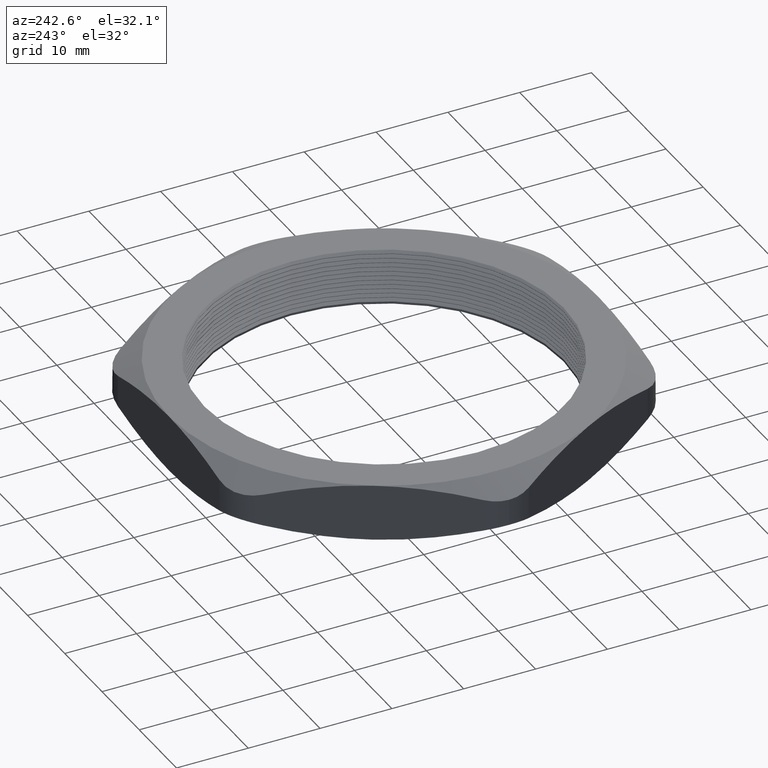
[diagram: clean part render]
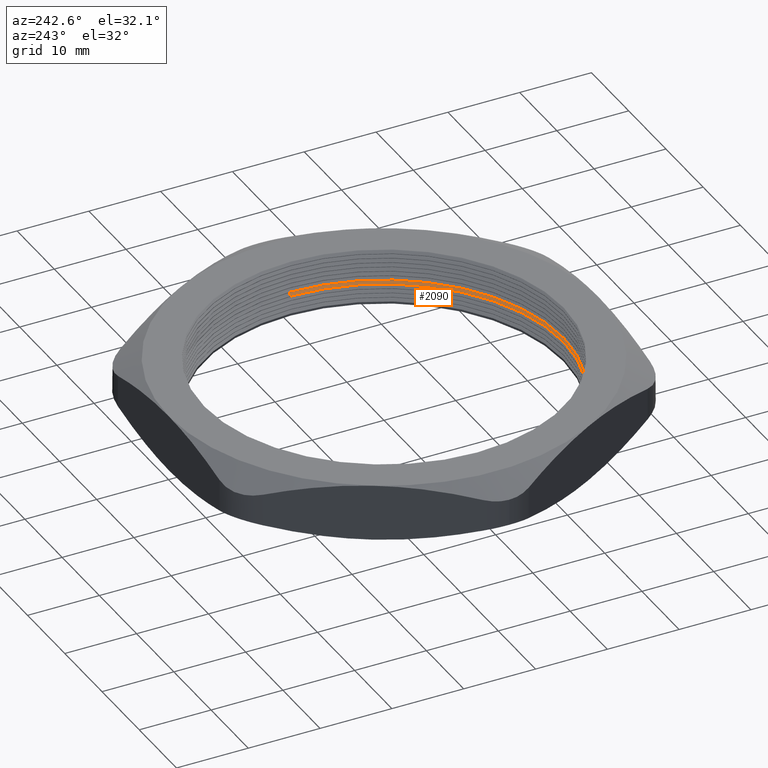
[diagram: same view with one face highlighted and labeled with its STEP entity id]
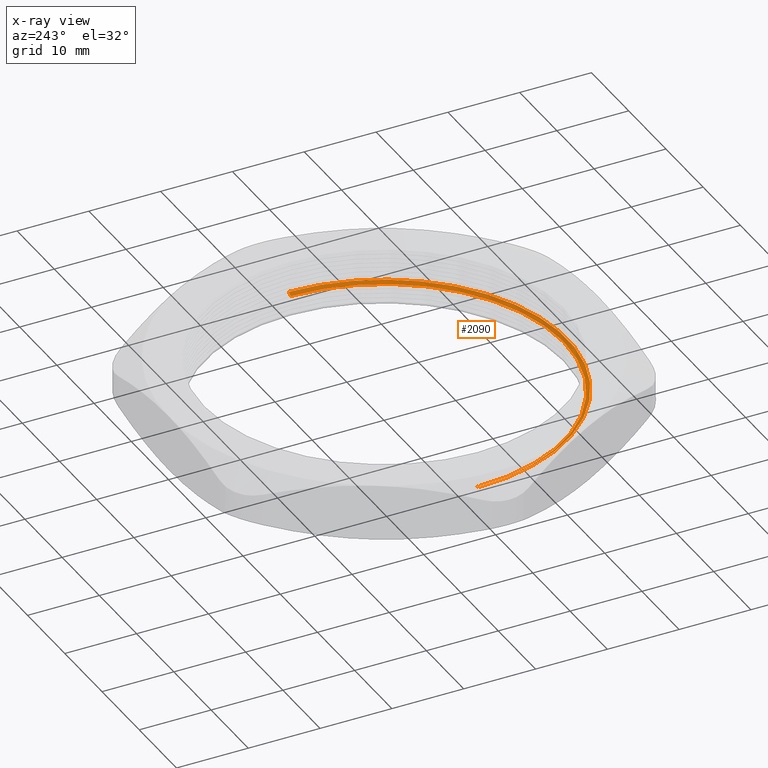
[diagram: x-ray of the same camera — body ghosted, the highlighted face saturated]
A machine part, auxiliary view. The second image highlights one B-rep face of the part: STEP entity #2090.
The next image is the same camera in x-ray: the body ghosted, the highlighted face saturated — about 0% of this face is hidden behind the body in this view.
In plain terms, the highlighted conical surface has half-angle 60 deg.
Its self-contained STEP definition (entity closure, byte-faithful):
#1082 = DIRECTION ( 'NONE',  ( 1.000000000000000000, 0.0000000000000000000, 0.0000000000000000000 ) ) ;
#1083 = AXIS2_PLACEMENT_3D ( 'NONE', #1094, #1092, #1082 ) ;
#1090 = CONICAL_SURFACE ( 'NONE', #1083, 0.9849999999999999900, 1.047197551196592500 ) ;
#1091 = FACE_OUTER_BOUND ( 'NONE', #2389, .T. ) ;
#1092 = DIRECTION ( 'NONE',  ( 0.0000000000000000000, 0.0000000000000000000, 1.000000000000000000 ) ) ;
#1094 = CARTESIAN_POINT ( 'NONE',  ( 0.0000000000000000000, 0.0000000000000000000, 0.1119059892324149900 ) ) ;
#1135 = DIRECTION ( 'NONE',  ( -0.8660254037844360400, 1.060575238724903700E-016, 0.5000000000000045500 ) ) ;
#1136 = VECTOR ( 'NONE', #1135, 39.37007874015748100 ) ;
#1137 = CARTESIAN_POINT ( 'NONE',  ( -0.9849999999999999900, 1.206277097160143100E-016, 0.1119059892324149900 ) ) ;
#1138 = LINE ( 'NONE', #1137, #1136 ) ;
#1143 = CARTESIAN_POINT ( 'NONE',  ( -0.9849999999999999900, 0.0000000000000000000, 0.1119059892324149900 ) ) ;
#1146 = CARTESIAN_POINT ( 'NONE',  ( 0.9849999999999999900, 1.206277097160143100E-016, 0.1119059892324149900 ) ) ;
#1147 = DIRECTION ( 'NONE',  ( 1.000000000000000000, 0.0000000000000000000, 0.0000000000000000000 ) ) ;
#1148 = DIRECTION ( 'NONE',  ( 0.0000000000000000000, 0.0000000000000000000, 1.000000000000000000 ) ) ;
#1149 = CARTESIAN_POINT ( 'NONE',  ( 0.0000000000000000000, 0.0000000000000000000, 0.1119059892324149900 ) ) ;
#1150 = AXIS2_PLACEMENT_3D ( 'NONE', #1149, #1148, #1147 ) ;
#1151 = CIRCLE ( 'NONE', #1150, 0.9849999999999999900 ) ;
#1808 = CARTESIAN_POINT ( 'NONE',  ( 1.005000000000000100, 1.230770033143090100E-016, 0.1234529946162076800 ) ) ;
#1825 = DIRECTION ( 'NONE',  ( 0.8660254037844360400, 0.0000000000000000000, 0.5000000000000045500 ) ) ;
#1826 = VECTOR ( 'NONE', #1825, 39.37007874015748100 ) ;
#1827 = CARTESIAN_POINT ( 'NONE',  ( 0.9849999999999999900, 0.0000000000000000000, 0.1119059892324149900 ) ) ;
#1828 = LINE ( 'NONE', #1827, #1826 ) ;
#1860 = CARTESIAN_POINT ( 'NONE',  ( -1.005000000000000100, 0.0000000000000000000, 0.1234529946162076800 ) ) ;
#1861 = DIRECTION ( 'NONE',  ( 1.000000000000000000, 0.0000000000000000000, 0.0000000000000000000 ) ) ;
#1862 = DIRECTION ( 'NONE',  ( 0.0000000000000000000, 0.0000000000000000000, 1.000000000000000000 ) ) ;
#1863 = CARTESIAN_POINT ( 'NONE',  ( 0.0000000000000000000, 0.0000000000000000000, 0.1234529946162076800 ) ) ;
#1864 = AXIS2_PLACEMENT_3D ( 'NONE', #1863, #1862, #1861 ) ;
#1865 = CIRCLE ( 'NONE', #1864, 1.005000000000000100 ) ;
#2090 = ADVANCED_FACE ( 'NONE', ( #1091 ), #1090, .F. ) ;
#2380 = ORIENTED_EDGE ( 'NONE', *, *, #2381, .F. ) ;
#2381 = EDGE_CURVE ( 'NONE', #2387, #2383, #1151, .T. ) ;
#2382 = ORIENTED_EDGE ( 'NONE', *, *, #2388, .T. ) ;
#2383 = VERTEX_POINT ( 'NONE', #1146 ) ;
#2387 = VERTEX_POINT ( 'NONE', #1143 ) ;
#2388 = EDGE_CURVE ( 'NONE', #2387, #2732, #1138, .T. ) ;
#2389 = EDGE_LOOP ( 'NONE', ( #2380, #2382, #2730, #2713 ) ) ;
#2713 = ORIENTED_EDGE ( 'NONE', *, *, #2716, .F. ) ;
#2716 = EDGE_CURVE ( 'NONE', #2383, #2724, #1828, .T. ) ;
#2724 = VERTEX_POINT ( 'NONE', #1808 ) ;
#2730 = ORIENTED_EDGE ( 'NONE', *, *, #2731, .T. ) ;
#2731 = EDGE_CURVE ( 'NONE', #2732, #2724, #1865, .T. ) ;
#2732 = VERTEX_POINT ( 'NONE', #1860 ) ;